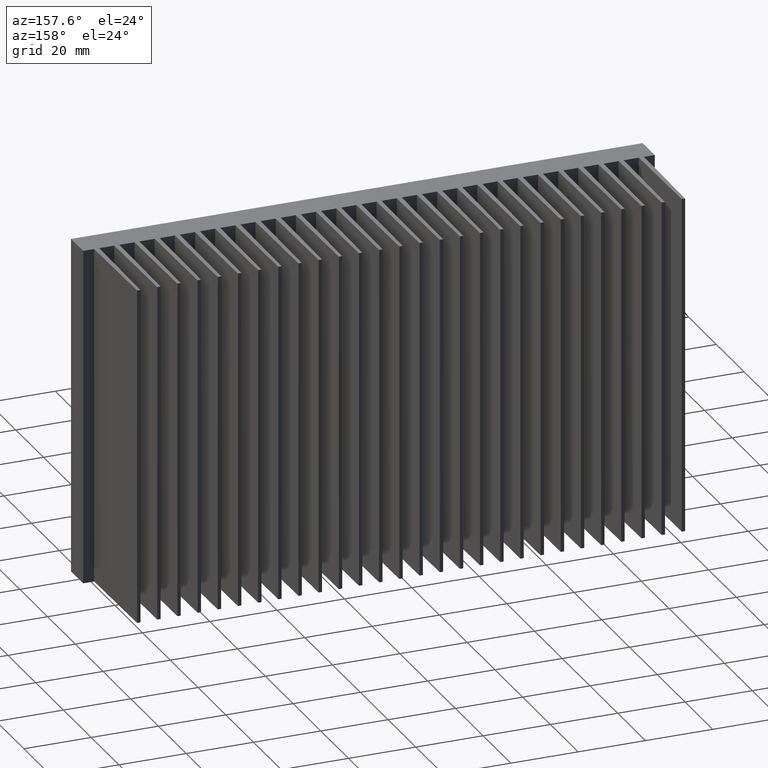
[diagram: clean part render]
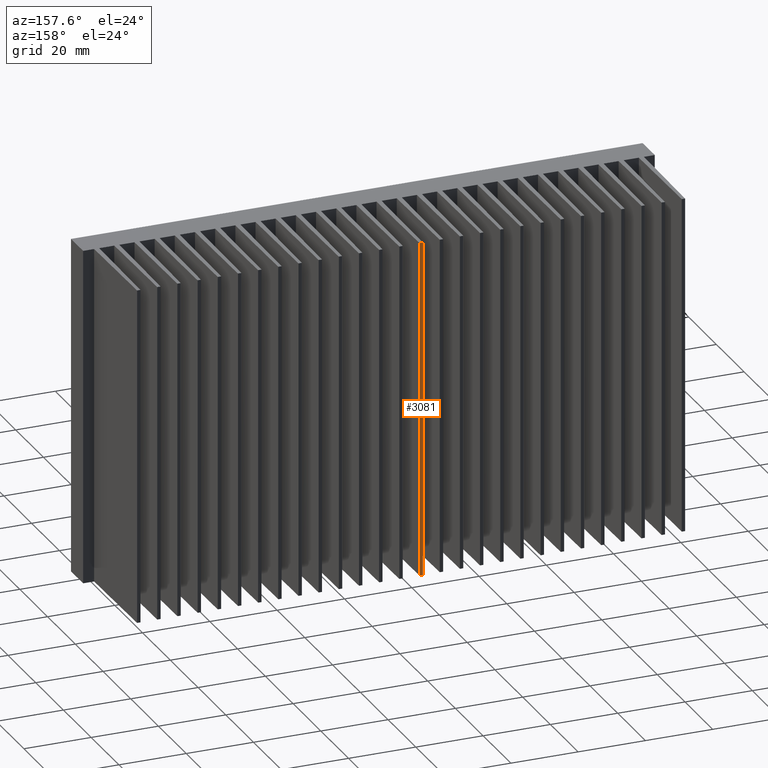
[diagram: same view with one face highlighted and labeled with its STEP entity id]
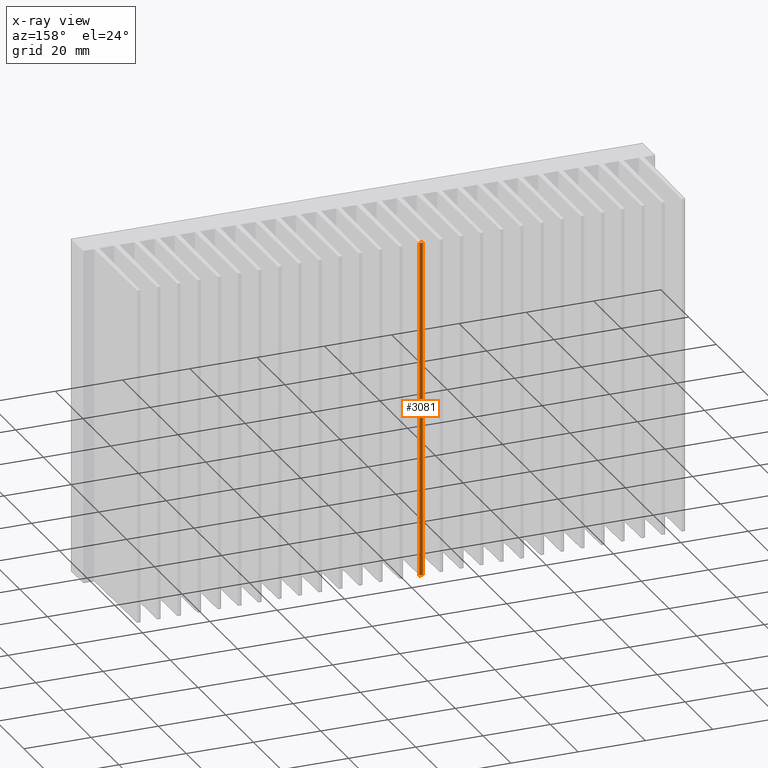
[diagram: x-ray of the same camera — body ghosted, the highlighted face saturated]
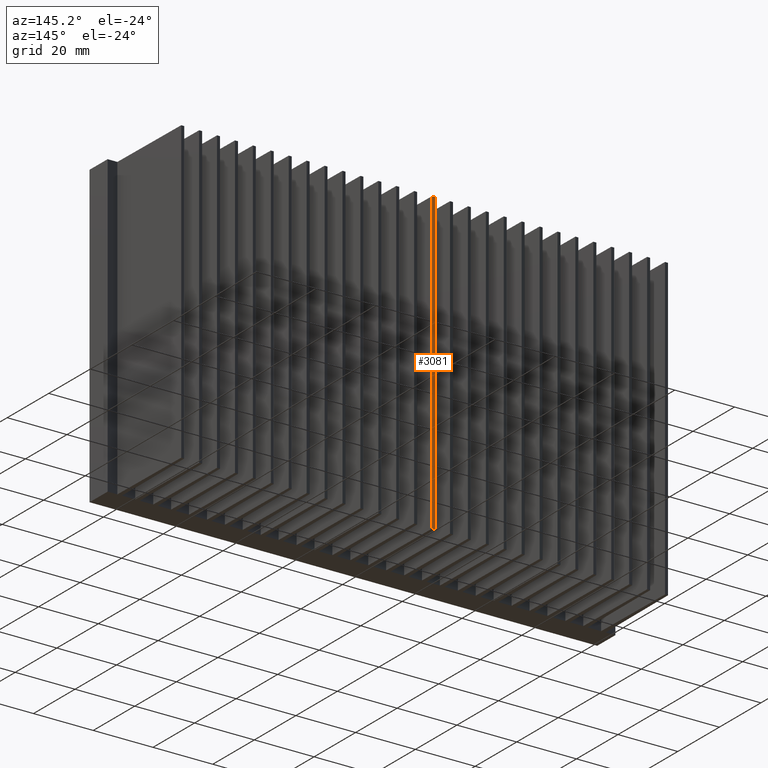
[diagram: same view with one face highlighted and labeled with its STEP entity id]
A machine part, auxiliary view. The second image highlights one B-rep face of the part: STEP entity #3081.
The next image is the same camera in x-ray: the body ghosted, the highlighted face saturated — about 0% of this face is hidden behind the body in this view.
A second angle (auxiliary view) of the same face is appended — the face is thin or edge-on in the first view.
In plain terms, the highlighted planar face has unit normal (0, -1, 0).
Its self-contained STEP definition (entity closure, byte-faithful):
#23 = FACE_OUTER_BOUND ( 'NONE', #2795, .T. ) ;
#62 = VERTEX_POINT ( 'NONE', #2999 ) ;
#86 = DIRECTION ( 'NONE',  ( -0.0000000000000000000, -0.0000000000000000000, -1.000000000000000000 ) ) ;
#234 = AXIS2_PLACEMENT_3D ( 'NONE', #767, #1094, #837 ) ;
#314 = VERTEX_POINT ( 'NONE', #3446 ) ;
#438 = VERTEX_POINT ( 'NONE', #1500 ) ;
#451 = EDGE_CURVE ( 'NONE', #314, #62, #2683, .T. ) ;
#692 = ORIENTED_EDGE ( 'NONE', *, *, #1165, .F. ) ;
#767 = CARTESIAN_POINT ( 'NONE',  ( -2.498400000000402521, 19.56251200000006563, 100.0000000000000000 ) ) ;
#837 = DIRECTION ( 'NONE',  ( 0.0000000000000000000, -0.0000000000000000000, -1.000000000000000000 ) ) ;
#875 = DIRECTION ( 'NONE',  ( -1.000000000000000000, 0.0000000000000000000, 0.0000000000000000000 ) ) ;
#879 = CARTESIAN_POINT ( 'NONE',  ( -2.498400000000402521, 19.56251200000006563, 100.0000000000000000 ) ) ;
#906 = LINE ( 'NONE', #3388, #936 ) ;
#936 = VECTOR ( 'NONE', #86, 1000.000000000000000 ) ;
#993 = VERTEX_POINT ( 'NONE', #2658 ) ;
#1014 = DIRECTION ( 'NONE',  ( -1.000000000000000000, 0.0000000000000000000, 0.0000000000000000000 ) ) ;
#1094 = DIRECTION ( 'NONE',  ( 0.0000000000000000000, -1.000000000000000000, 0.0000000000000000000 ) ) ;
#1131 = ORIENTED_EDGE ( 'NONE', *, *, #451, .T. ) ;
#1165 = EDGE_CURVE ( 'NONE', #438, #62, #906, .T. ) ;
#1179 = VECTOR ( 'NONE', #875, 1000.000000000000000 ) ;
#1214 = LINE ( 'NONE', #879, #1179 ) ;
#1406 = EDGE_CURVE ( 'NONE', #993, #438, #1214, .T. ) ;
#1500 = CARTESIAN_POINT ( 'NONE',  ( -3.497760000000656788, 19.56251200000006563, 100.0000000000000000 ) ) ;
#2247 = CARTESIAN_POINT ( 'NONE',  ( -2.498400000000402521, 19.56251200000006563, 0.0000000000000000000 ) ) ;
#2288 = EDGE_CURVE ( 'NONE', #993, #314, #3845, .T. ) ;
#2620 = PLANE ( 'NONE',  #234 ) ;
#2627 = VECTOR ( 'NONE', #1014, 1000.000000000000000 ) ;
#2658 = CARTESIAN_POINT ( 'NONE',  ( -2.498400000000402521, 19.56251200000006563, 100.0000000000000000 ) ) ;
#2683 = LINE ( 'NONE', #2247, #2627 ) ;
#2775 = ORIENTED_EDGE ( 'NONE', *, *, #1406, .F. ) ;
#2795 = EDGE_LOOP ( 'NONE', ( #1131, #692, #2775, #3673 ) ) ;
#2999 = CARTESIAN_POINT ( 'NONE',  ( -3.497760000000656788, 19.56251200000006563, 0.0000000000000000000 ) ) ;
#3081 = ADVANCED_FACE ( 'NONE', ( #23 ), #2620, .F. ) ;
#3388 = CARTESIAN_POINT ( 'NONE',  ( -3.497760000000656788, 19.56251200000006563, 100.0000000000000000 ) ) ;
#3446 = CARTESIAN_POINT ( 'NONE',  ( -2.498400000000402521, 19.56251200000006563, 0.0000000000000000000 ) ) ;
#3625 = VECTOR ( 'NONE', #3788, 1000.000000000000000 ) ;
#3673 = ORIENTED_EDGE ( 'NONE', *, *, #2288, .T. ) ;
#3788 = DIRECTION ( 'NONE',  ( -0.0000000000000000000, -0.0000000000000000000, -1.000000000000000000 ) ) ;
#3795 = CARTESIAN_POINT ( 'NONE',  ( -2.498400000000402521, 19.56251200000006563, 100.0000000000000000 ) ) ;
#3845 = LINE ( 'NONE', #3795, #3625 ) ;